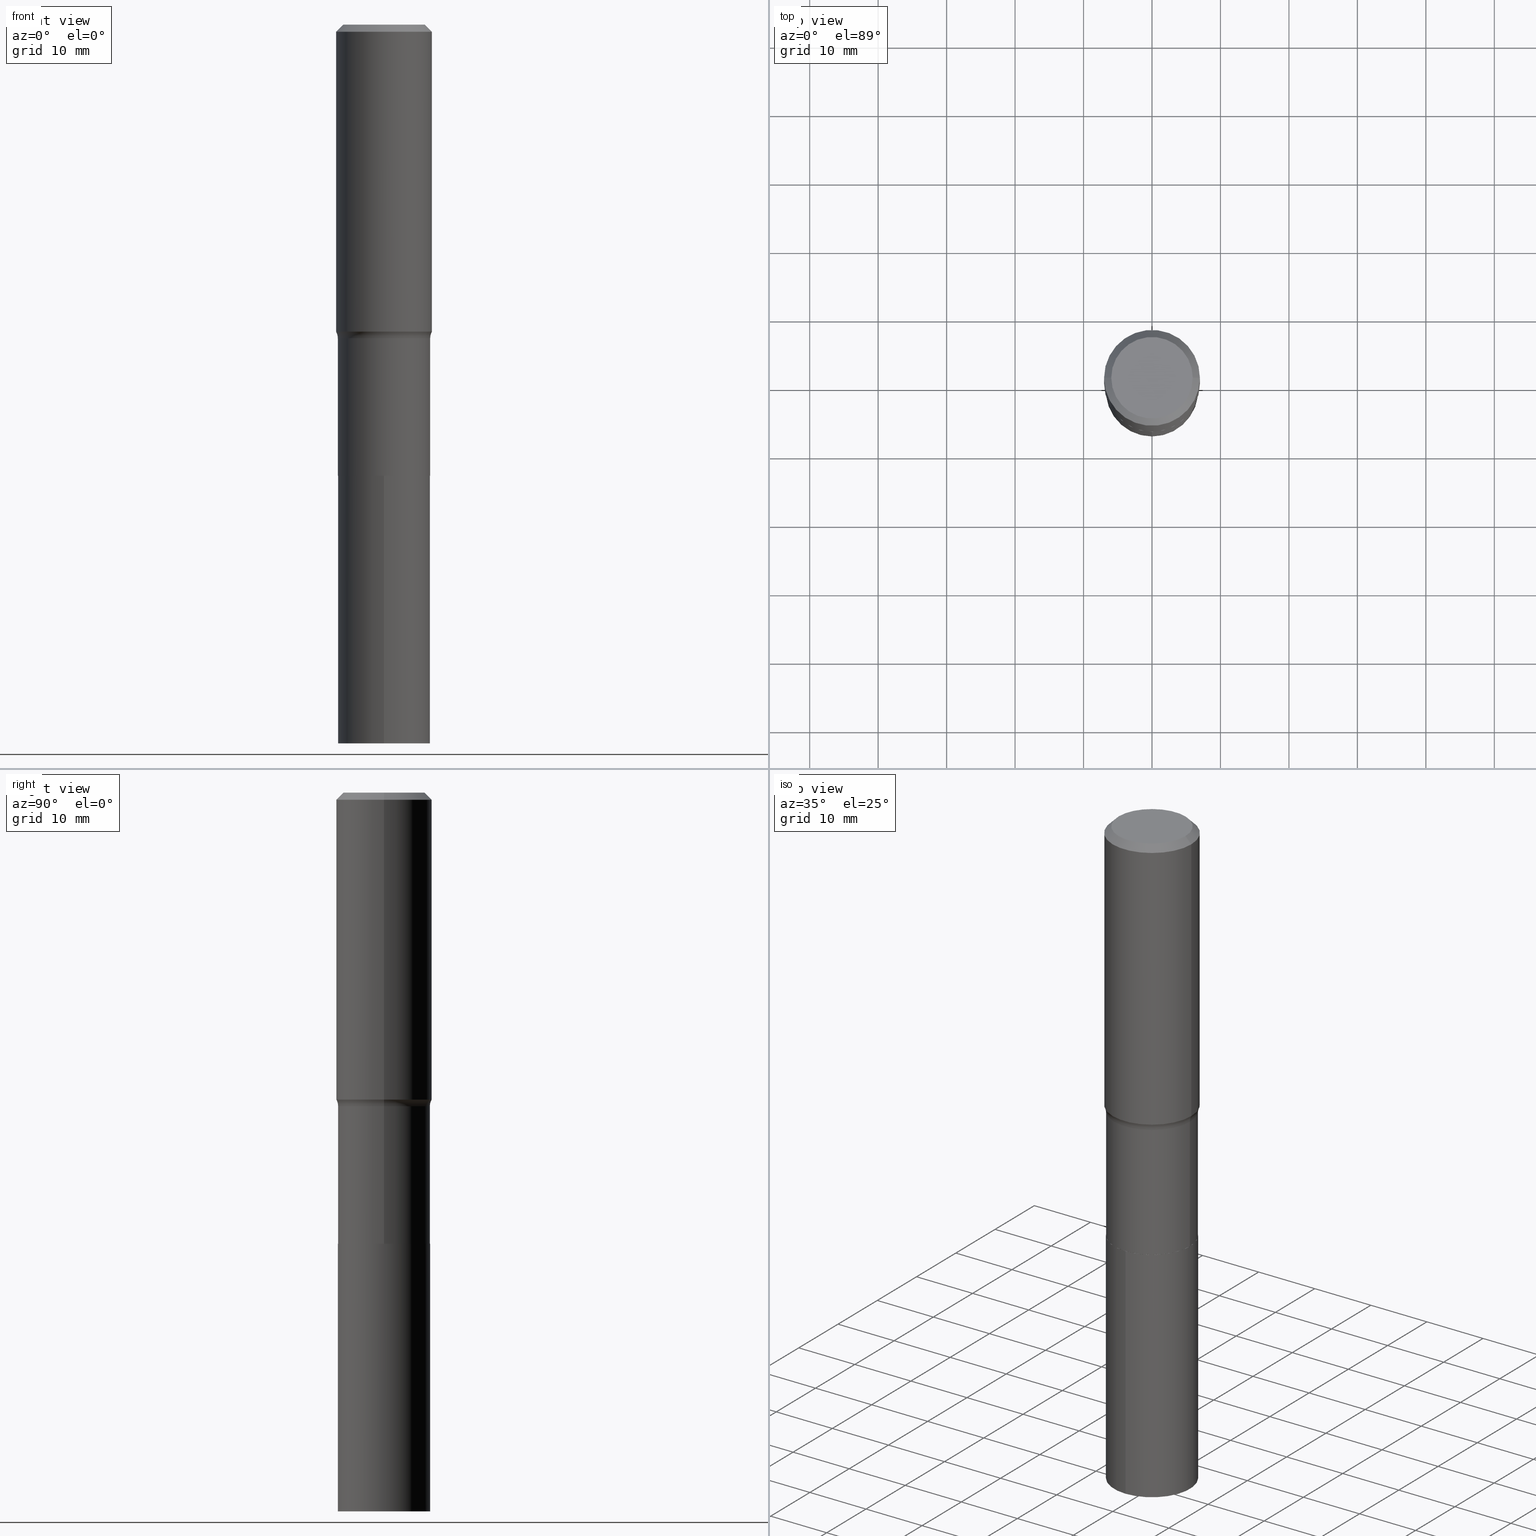
[diagram: canonical four-view strip — front | top / right | iso, engineering-drawing reading convention]
A machine part, canonical four-view strip (front | top / right | iso — engineering-drawing reading convention). The complete STEP part file that produces these views, byte-faithful:
ISO-10303-21;
HEADER;
FILE_DESCRIPTION (( 'STEP AP203' ),
    '1' );
FILE_NAME ('58847.STEP',
    '2024-04-19T14:45:17',
    ( '' ),
    ( '' ),
    'SwSTEP 2.0',
    'SolidWorks 2023',
    '' );
FILE_SCHEMA (( 'CONFIG_CONTROL_DESIGN' ));
ENDSEC;

DATA;
#1 = ORIENTED_EDGE ( 'NONE', *, *, #407, .F. ) ;
#2 = PERSON ( 'UNSPECIFIED', 'UNSPECIFIED', 'UNSPECIFIED', ('UNSPECIFIED'), ('UNSPECIFIED'), ('UNSPECIFIED') ) ;
#3 = CARTESIAN_POINT ( 'NONE',  ( 1.010956804476941522E-30, -1.443378385477764823E-16, -0.04134000000000024461 ) ) ;
#4 = CARTESIAN_POINT ( 'NONE',  ( -0.3455999999999999073, -3.843694936753897174E-15, -1.804199999999999804 ) ) ;
#5 = AXIS2_PLACEMENT_3D ( 'NONE', #4, #189, #456 ) ;
#6 = ORIENTED_EDGE ( 'NONE', *, *, #51, .F. ) ;
#7 = CARTESIAN_POINT ( 'NONE',  ( 0.2651000000000000023, -1.091122833201870838E-14, -2.594900000000000428 ) ) ;
#8 = ORIENTED_EDGE ( 'NONE', *, *, #443, .F. ) ;
#9 = DIRECTION ( 'NONE',  ( -1.000000000000000000, 6.982962677686265922E-15, -4.876176775795935793E-29 ) ) ;
#10 = ORIENTED_EDGE ( 'NONE', *, *, #454, .T. ) ;
#11 = ORIENTED_EDGE ( 'NONE', *, *, #156, .F. ) ;
#12 = EDGE_CURVE ( 'NONE', #53, #420, #359, .T. ) ;
#13 = DIRECTION ( 'NONE',  ( -0.7071067811864509833, 7.493145998870005484E-15, 0.7071067811866440511 ) ) ;
#14 = EDGE_LOOP ( 'NONE', ( #70, #47, #389, #298 ) ) ;
#15 = AXIS2_PLACEMENT_3D ( 'NONE', #186, #373, #223 ) ;
#16 = FACE_OUTER_BOUND ( 'NONE', #411, .T. ) ;
#17 = LOCAL_TIME ( 10, 45, 17.00000000000000000, #142 ) ;
#18 = DIRECTION ( 'NONE',  ( -2.445468806185136597E-29, 3.491481338843145583E-15, 1.000000000000000000 ) ) ;
#19 = EDGE_CURVE ( 'NONE', #53, #399, #463, .T. ) ;
#20 = CARTESIAN_POINT ( 'NONE',  ( 0.2756000000000001782, -8.088610654721802073E-15, -1.765470166537925101 ) ) ;
#21 = APPROVAL ( #219, 'UNSPECIFIED' ) ;
#22 = DIRECTION ( 'NONE',  ( -2.445468806185136597E-29, 3.491481338843145583E-15, 1.000000000000000000 ) ) ;
#23 = ORGANIZATION ( 'UNSPECIFIED', 'UNSPECIFIED', '' ) ;
#24 = PERSON_AND_ORGANIZATION ( #2, #23 ) ;
#25 = EDGE_CURVE ( 'NONE', #331, #294, #460, .T. ) ;
#26 = APPROVAL_DATE_TIME ( #184, #67 ) ;
#27 = CARTESIAN_POINT ( 'NONE',  ( 0.000000000000000000, 0.000000000000000000, 0.000000000000000000 ) ) ;
#28 = AXIS2_PLACEMENT_3D ( 'NONE', #263, #376, #402 ) ;
#29 = VECTOR ( 'NONE', #385, 39.37007874015748143 ) ;
#30 = DIRECTION ( 'NONE',  ( -2.445468806185136597E-29, 3.491481338843145583E-15, 1.000000000000000000 ) ) ;
#31 = ORIENTED_EDGE ( 'NONE', *, *, #425, .F. ) ;
#32 = PERSON_AND_ORGANIZATION_ROLE ( 'creator' ) ;
#33 = PLANE ( 'NONE',  #380 ) ;
#34 = CARTESIAN_POINT ( 'NONE',  ( 0.2756000000000000116, -2.035091086733610886E-15, -0.04134000000000024461 ) ) ;
#35 = ORIENTED_EDGE ( 'NONE', *, *, #379, .T. ) ;
#36 = CARTESIAN_POINT ( 'NONE',  ( 4.317402220518974111E-29, -6.164106140751466330E-15, -1.765470166537925101 ) ) ;
#37 = PERSON_AND_ORGANIZATION_ROLE ( 'classification_officer' ) ;
#38 = EDGE_LOOP ( 'NONE', ( #6, #232, #91, #225 ) ) ;
#39 = AXIS2_PLACEMENT_3D ( 'NONE', #3, #88, #162 ) ;
#40 = CIRCLE ( 'NONE', #230, 0.2756000000000001782 ) ;
#41 = APPROVAL_PERSON_ORGANIZATION ( #395, #21, #188 ) ;
#42 = DIRECTION ( 'NONE',  ( -2.445468806185136597E-29, 3.491481338843145583E-15, 1.000000000000000000 ) ) ;
#43 = APPROVAL_DATE_TIME ( #300, #172 ) ;
#44 = DIMENSIONAL_EXPONENTS ( 1.000000000000000000, 0.000000000000000000, 0.000000000000000000, 0.000000000000000000, 0.000000000000000000, 0.000000000000000000, 0.000000000000000000 ) ;
#45 = ADVANCED_FACE ( 'NONE', ( #117 ), #111, .T. ) ;
#46 = LINE ( 'NONE', #7, #364 ) ;
#47 = ORIENTED_EDGE ( 'NONE', *, *, #221, .T. ) ;
#48 = VECTOR ( 'NONE', #84, 39.37007874015748143 ) ;
#49 = CONICAL_SURFACE ( 'NONE', #296, 0.2651000000000000023, 0.7853981633973118326 ) ;
#50 = DIRECTION ( 'NONE',  ( -2.445468806185136597E-29, 3.491481338843145583E-15, 1.000000000000000000 ) ) ;
#51 = EDGE_CURVE ( 'NONE', #309, #377, #149, .T. ) ;
#52 = ORIENTED_EDGE ( 'NONE', *, *, #160, .T. ) ;
#53 = VERTEX_POINT ( 'NONE', #466 ) ;
#54 = CARTESIAN_POINT ( 'NONE',  ( 0.000000000000000000, 0.000000000000000000, 0.000000000000000000 ) ) ;
#55 = LINE ( 'NONE', #244, #303 ) ;
#56 = AXIS2_PLACEMENT_3D ( 'NONE', #97, #110, #332 ) ;
#57 = ORIENTED_EDGE ( 'NONE', *, *, #19, .T. ) ;
#58 = CARTESIAN_POINT ( 'NONE',  ( 0.2655999999999998917, -8.154005518734274413E-15, -1.804199999999999804 ) ) ;
#59 = CIRCLE ( 'NONE', #321, 0.2656000000000000028 ) ;
#60 = EDGE_CURVE ( 'NONE', #420, #53, #256, .T. ) ;
#61 = DIRECTION ( 'NONE',  ( -1.000000000000000000, 6.982962677686267499E-15, 0.000000000000000000 ) ) ;
#62 = CYLINDRICAL_SURFACE ( 'NONE', #214, 0.2656000000000000028 ) ;
#63 = FACE_OUTER_BOUND ( 'NONE', #351, .T. ) ;
#64 = APPROVAL_ROLE ( '' ) ;
#65 = AXIS2_PLACEMENT_3D ( 'NONE', #446, #282, #347 ) ;
#66 = APPROVAL_PERSON_ORGANIZATION ( #181, #67, #371 ) ;
#67 = APPROVAL ( #361, 'UNSPECIFIED' ) ;
#68 = LENGTH_MEASURE_WITH_UNIT ( LENGTH_MEASURE( 0.02539999999999999897 ), #215 );
#69 = DIRECTION ( 'NONE',  ( 1.000000000000000000, -6.982962677686267499E-15, 4.876157962347795834E-29 ) ) ;
#70 = ORIENTED_EDGE ( 'NONE', *, *, #204, .T. ) ;
#71 = PERSON_AND_ORGANIZATION ( #2, #23 ) ;
#72 = DIRECTION ( 'NONE',  ( 0.7071067811864509833, -2.468850131081245741E-15, 0.7071067811866440511 ) ) ;
#73 = AXIS2_PLACEMENT_3D ( 'NONE', #242, #387, #323 ) ;
#74 = DIRECTION ( 'NONE',  ( 1.000000000000000000, -6.982962677686267499E-15, 4.876176775795935793E-29 ) ) ;
#75 = ORIENTED_EDGE ( 'NONE', *, *, #204, .F. ) ;
#76 = PERSON_AND_ORGANIZATION_ROLE ( 'creator' ) ;
#77 = DIRECTION ( 'NONE',  ( -0.7071067811865453523, 2.468850131082234184E-15, -0.7071067811865496822 ) ) ;
#78 = CC_DESIGN_PERSON_AND_ORGANIZATION_ASSIGNMENT ( #154, #107, ( #90 ) ) ;
#79 = DIRECTION ( 'NONE',  ( -6.982962677686265133E-15, -1.000000000000000000, 4.114228906120878260E-15 ) ) ;
#80 = CARTESIAN_POINT ( 'NONE',  ( 0.000000000000000000, 0.000000000000000000, 0.000000000000000000 ) ) ;
#81 = EDGE_LOOP ( 'NONE', ( #157, #11 ) ) ;
#82 = FACE_OUTER_BOUND ( 'NONE', #14, .T. ) ;
#83 = CALENDAR_DATE ( 2024, 19, 4 ) ;
#84 = DIRECTION ( 'NONE',  ( -2.445468806185136877E-29, 3.491481338843145188E-15, 1.000000000000000000 ) ) ;
#85 = DIRECTION ( 'NONE',  ( -6.982962677686265133E-15, -1.000000000000000000, 4.114228906120878260E-15 ) ) ;
#86 = EDGE_CURVE ( 'NONE', #104, #309, #327, .T. ) ;
#87 = APPROVAL_PERSON_ORGANIZATION ( #392, #172, #64 ) ;
#88 = DIRECTION ( 'NONE',  ( -2.445468806185136597E-29, 3.491481338843145583E-15, 1.000000000000000000 ) ) ;
#89 = ORIENTED_EDGE ( 'NONE', *, *, #19, .F. ) ;
#90 = PRODUCT ( '58847', '58847', '', ( #283 ) ) ;
#91 = ORIENTED_EDGE ( 'NONE', *, *, #139, .T. ) ;
#92 = AXIS2_PLACEMENT_3D ( 'NONE', #390, #275, #179 ) ;
#93 = DIRECTION ( 'NONE',  ( -2.445468806185136877E-29, 3.491481338843145188E-15, 1.000000000000000000 ) ) ;
#94 = ORIENTED_EDGE ( 'NONE', *, *, #249, .T. ) ;
#95 = DIRECTION ( 'NONE',  ( -6.982962677686265133E-15, -1.000000000000000000, 4.114228906120878260E-15 ) ) ;
#96 = DIRECTION ( 'NONE',  ( 2.446021775640540996E-29, -3.490689455109939233E-15, -1.000000000000000000 ) ) ;
#97 = CARTESIAN_POINT ( 'NONE',  ( 0.000000000000000000, 0.000000000000000000, 0.000000000000000000 ) ) ;
#98 = FACE_OUTER_BOUND ( 'NONE', #344, .T. ) ;
#99 = CLOSED_SHELL ( 'NONE', ( #243, #413, #403, #374, #123, #112, #304, #45, #285, #228, #206, #268 ) ) ;
#100 = VERTEX_POINT ( 'NONE', #177 ) ;
#101 = CARTESIAN_POINT ( 'NONE',  ( 0.2756000000000000116, -2.068842352518111732E-15, -0.04134000000000024461 ) ) ;
#102 = VECTOR ( 'NONE', #13, 39.37007874015748143 ) ;
#103 = CARTESIAN_POINT ( 'NONE',  ( 6.344524270766718466E-29, -9.058299185494657438E-15, -2.594400000000000261 ) ) ;
#104 = VERTEX_POINT ( 'NONE', #20 ) ;
#105 = DATE_AND_TIME ( #421, #17 ) ;
#106 = ADVANCED_FACE ( 'NONE', ( #355 ), #62, .T. ) ;
#107 = PERSON_AND_ORGANIZATION_ROLE ( 'design_owner' ) ;
#108 = LOCAL_TIME ( 10, 45, 17.00000000000000000, #333 ) ;
#109 = DIRECTION ( 'NONE',  ( 1.000000000000000000, -6.982962677686267499E-15, 4.876157962347795834E-29 ) ) ;
#110 = DIRECTION ( 'NONE',  ( -2.445468806185136597E-29, 3.491481338843145583E-15, 1.000000000000000000 ) ) ;
#111 = CYLINDRICAL_SURFACE ( 'NONE', #278, 0.2756000000000001227 ) ;
#112 = ADVANCED_FACE ( 'NONE', ( #322 ), #141, .T. ) ;
#113 = ORIENTED_EDGE ( 'NONE', *, *, #236, .T. ) ;
#114 = DATE_AND_TIME ( #465, #108 ) ;
#115 = PLANE ( 'NONE',  #15 ) ;
#116 = AXIS2_PLACEMENT_3D ( 'NONE', #250, #224, #217 ) ;
#117 = FACE_OUTER_BOUND ( 'NONE', #38, .T. ) ;
#118 = ORIENTED_EDGE ( 'NONE', *, *, #86, .T. ) ;
#119 = DIRECTION ( 'NONE',  ( -2.445468806185136877E-29, 3.491481338843145188E-15, 1.000000000000000000 ) ) ;
#120 = LINE ( 'NONE', #299, #452 ) ;
#121 = FACE_OUTER_BOUND ( 'NONE', #81, .T. ) ;
#122 = FACE_OUTER_BOUND ( 'NONE', #346, .T. ) ;
#123 = ADVANCED_FACE ( 'NONE', ( #274 ), #415, .T. ) ;
#124 = CIRCLE ( 'NONE', #432, 0.2651000000000000023 ) ;
#125 = ORIENTED_EDGE ( 'NONE', *, *, #25, .F. ) ;
#126 = LINE ( 'NONE', #345, #246 ) ;
#127 = ORIENTED_EDGE ( 'NONE', *, *, #249, .F. ) ;
#128 = CARTESIAN_POINT ( 'NONE',  ( 6.345747005169811267E-29, -9.060044926164079731E-15, -2.594900000000000428 ) ) ;
#129 = EDGE_LOOP ( 'NONE', ( #353, #57, #203, #406 ) ) ;
#130 = TOROIDAL_SURFACE ( 'NONE', #185, 0.3455999999999999073, 0.08000000000000001554 ) ;
#131 = DIRECTION ( 'NONE',  ( 1.000000000000000000, -6.982962677686271444E-15, 0.000000000000000000 ) ) ;
#132 = LINE ( 'NONE', #240, #29 ) ;
#133 = PLANE ( 'NONE',  #92 ) ;
#134 = APPLICATION_CONTEXT ( 'configuration controlled 3d designs of mechanical parts and assemblies' ) ;
#135 = EDGE_CURVE ( 'NONE', #309, #104, #40, .T. ) ;
#136 = CIRCLE ( 'NONE', #397, 0.2651000000000000023 ) ;
#137 = DIRECTION ( 'NONE',  ( -2.445468806185136597E-29, 3.491481338843145583E-15, 1.000000000000000000 ) ) ;
#138 = CIRCLE ( 'NONE', #170, 0.2655999999999998917 ) ;
#139 = EDGE_CURVE ( 'NONE', #104, #399, #126, .T. ) ;
#140 = ORIENTED_EDGE ( 'NONE', *, *, #12, .T. ) ;
#141 = CYLINDRICAL_SURFACE ( 'NONE', #65, 0.2655999999999999472 ) ;
#142 = COORDINATED_UNIVERSAL_TIME_OFFSET ( 5, 0, .BEHIND. ) ;
#143 = CALENDAR_DATE ( 2024, 19, 4 ) ;
#144 = DIRECTION ( 'NONE',  ( 1.000000000000000000, -6.982962677686265922E-15, 0.000000000000000000 ) ) ;
#145 = MANIFOLD_SOLID_BREP ( 'Body-Move/Copy2[2]', #99 ) ;
#146 = PERSON_AND_ORGANIZATION_ROLE ( 'design_supplier' ) ;
#147 = AXIS2_PLACEMENT_3D ( 'NONE', #447, #352, #61 ) ;
#148 = CC_DESIGN_APPROVAL ( #172, ( #231 ) ) ;
#149 = LINE ( 'NONE', #369, #378 ) ;
#150 = DIRECTION ( 'NONE',  ( 1.000000000000000000, 0.000000000000000000, 0.000000000000000000 ) ) ;
#151 = ADVANCED_FACE ( 'NONE', ( #82 ), #295, .T. ) ;
#152 = DIRECTION ( 'NONE',  ( 0.7071067811865453523, -7.319954787623248157E-15, -0.7071067811865496822 ) ) ;
#153 = ORIENTED_EDGE ( 'NONE', *, *, #324, .F. ) ;
#154 = PERSON_AND_ORGANIZATION ( #2, #23 ) ;
#155 = CARTESIAN_POINT ( 'NONE',  ( 0.3455999999999999073, -8.712642532949174488E-15, -1.804199999999999804 ) ) ;
#156 = EDGE_CURVE ( 'NONE', #401, #194, #136, .T. ) ;
#157 = ORIENTED_EDGE ( 'NONE', *, *, #454, .F. ) ;
#158 = AXIS2_PLACEMENT_3D ( 'NONE', #426, #292, #109 ) ;
#159 = ORIENTED_EDGE ( 'NONE', *, *, #156, .T. ) ;
#160 = EDGE_CURVE ( 'NONE', #377, #399, #200, .T. ) ;
#161 = DIRECTION ( 'NONE',  ( 1.000000000000000000, -6.982962677686265922E-15, 0.000000000000000000 ) ) ;
#162 = DIRECTION ( 'NONE',  ( 1.000000000000000000, -6.982962677686267499E-15, 0.000000000000000000 ) ) ;
#163 = FACE_OUTER_BOUND ( 'NONE', #436, .T. ) ;
#164 = CONICAL_SURFACE ( 'NONE', #180, 0.2651000000000000023, 0.7853981633973118326 ) ;
#165 = SHAPE_DEFINITION_REPRESENTATION ( #306, #423 ) ;
#166 = ORIENTED_EDGE ( 'NONE', *, *, #167, .T. ) ;
#167 = EDGE_CURVE ( 'NONE', #420, #377, #120, .T. ) ;
#168 = EDGE_LOOP ( 'NONE', ( #201, #140 ) ) ;
#169 = CARTESIAN_POINT ( 'NONE',  ( 1.887201506178908155E-15, 0.2655999999999855699, -4.133900000000002350 ) ) ;
#170 = AXIS2_PLACEMENT_3D ( 'NONE', #211, #18, #175 ) ;
#171 = CC_DESIGN_SECURITY_CLASSIFICATION ( #231, ( #445 ) ) ;
#172 = APPROVAL ( #284, 'UNSPECIFIED' ) ;
#173 = FACE_OUTER_BOUND ( 'NONE', #129, .T. ) ;
#174 = CARTESIAN_POINT ( 'NONE',  ( 1.010956804476941522E-30, -1.443378385477764823E-16, -0.04134000000000024461 ) ) ;
#175 = DIRECTION ( 'NONE',  ( 1.000000000000000000, -6.982962677686266711E-15, 0.000000000000000000 ) ) ;
#176 = CC_DESIGN_PERSON_AND_ORGANIZATION_ASSIGNMENT ( #24, #37, ( #231 ) ) ;
#177 = CARTESIAN_POINT ( 'NONE',  ( -0.2655999999999998917, -5.791613402338903590E-15, -1.804199999999999804 ) ) ;
#178 = CIRCLE ( 'NONE', #311, 0.2656000000000000028 ) ;
#179 = DIRECTION ( 'NONE',  ( -6.982962677686265922E-15, -1.000000000000000000, 3.490689455109939233E-15 ) ) ;
#180 = AXIS2_PLACEMENT_3D ( 'NONE', #252, #366, #307 ) ;
#181 = PERSON_AND_ORGANIZATION ( #2, #23 ) ;
#182 = DIRECTION ( 'NONE',  ( -2.446021775640540996E-29, 3.490689455109939628E-15, 1.000000000000000000 ) ) ;
#183 = FACE_OUTER_BOUND ( 'NONE', #239, .T. ) ;
#184 = DATE_AND_TIME ( #143, #337 ) ;
#185 = AXIS2_PLACEMENT_3D ( 'NONE', #412, #356, #409 ) ;
#186 = CARTESIAN_POINT ( 'NONE',  ( 6.345747005169811267E-29, -9.060044926164079731E-15, -2.594900000000000428 ) ) ;
#187 = VERTEX_POINT ( 'NONE', #372 ) ;
#188 = APPROVAL_ROLE ( '' ) ;
#189 = DIRECTION ( 'NONE',  ( 7.105427357601001859E-15, 1.000000000000000000, -3.491481338843145583E-15 ) ) ;
#190 = DIRECTION ( 'NONE',  ( -2.445468806185136877E-29, 3.491481338843145188E-15, 1.000000000000000000 ) ) ;
#191 = ORIENTED_EDGE ( 'NONE', *, *, #60, .F. ) ;
#192 = DATE_TIME_ROLE ( 'creation_date' ) ;
#193 = EDGE_CURVE ( 'NONE', #276, #100, #262, .T. ) ;
#194 = VERTEX_POINT ( 'NONE', #301 ) ;
#195 = CARTESIAN_POINT ( 'NONE',  ( 6.345747005169811267E-29, -9.060044926164079731E-15, -2.594900000000000428 ) ) ;
#196 = LOCAL_TIME ( 10, 45, 17.00000000000000000, #330 ) ;
#197 = UNCERTAINTY_MEASURE_WITH_UNIT (LENGTH_MEASURE( 1.000000000000000082E-05 ), #290, 'distance_accuracy_value', 'NONE');
#198 = ORIENTED_EDGE ( 'NONE', *, *, #358, .F. ) ;
#199 = CC_DESIGN_PERSON_AND_ORGANIZATION_ASSIGNMENT ( #71, #32, ( #391 ) ) ;
#200 = CIRCLE ( 'NONE', #39, 0.2756000000000000116 ) ;
#201 = ORIENTED_EDGE ( 'NONE', *, *, #60, .T. ) ;
#202 = AXIS2_PLACEMENT_3D ( 'NONE', #174, #449, #354 ) ;
#203 = ORIENTED_EDGE ( 'NONE', *, *, #443, .T. ) ;
#204 = EDGE_CURVE ( 'NONE', #294, #331, #178, .T. ) ;
#205 = DIRECTION ( 'NONE',  ( 1.000000000000000000, -6.982962677686267499E-15, 4.876176775795935793E-29 ) ) ;
#206 = ADVANCED_FACE ( 'NONE', ( #121 ), #115, .F. ) ;
#207 = CARTESIAN_POINT ( 'NONE',  ( -0.2756000000000000116, -1.195966209894784176E-15, -0.04134000000000024461 ) ) ;
#208 = ORIENTED_EDGE ( 'NONE', *, *, #343, .T. ) ;
#209 = CIRCLE ( 'NONE', #453, 0.2656000000000000028 ) ;
#210 = ORIENTED_EDGE ( 'NONE', *, *, #193, .T. ) ;
#211 = CARTESIAN_POINT ( 'NONE',  ( 4.412114820119222828E-29, -6.299330631540802758E-15, -1.804199999999999804 ) ) ;
#212 = DIRECTION ( 'NONE',  ( -2.446021775640540996E-29, 3.490689455109939628E-15, 1.000000000000000000 ) ) ;
#213 = DIRECTION ( 'NONE',  ( 1.000000000000000000, -6.982962677686265922E-15, 0.000000000000000000 ) ) ;
#214 = AXIS2_PLACEMENT_3D ( 'NONE', #450, #212, #95 ) ;
#215 =( LENGTH_UNIT ( ) NAMED_UNIT ( * ) SI_UNIT ( $, .METRE. ) );
#216 =( NAMED_UNIT ( * ) SI_UNIT ( $, .STERADIAN. ) SOLID_ANGLE_UNIT ( ) );
#217 = DIRECTION ( 'NONE',  ( -6.982962677686265133E-15, -1.000000000000000000, 4.114228906120878260E-15 ) ) ;
#218 = ORIENTED_EDGE ( 'NONE', *, *, #343, .F. ) ;
#219 = APPROVAL_STATUS ( 'not_yet_approved' ) ;
#220 = CLOSED_SHELL ( 'NONE', ( #151, #334, #106, #320 ) ) ;
#221 = EDGE_CURVE ( 'NONE', #331, #187, #427, .T. ) ;
#222 = AXIS2_PLACEMENT_3D ( 'NONE', #266, #50, #340 ) ;
#223 = DIRECTION ( 'NONE',  ( 1.000000000000000000, -6.982962677686265922E-15, 4.876176775795935793E-29 ) ) ;
#224 = DIRECTION ( 'NONE',  ( -2.446021775640540996E-29, 3.490689455109939628E-15, 1.000000000000000000 ) ) ;
#225 = ORIENTED_EDGE ( 'NONE', *, *, #160, .F. ) ;
#226 = PERSON_AND_ORGANIZATION ( #2, #23 ) ;
#227 = DIRECTION ( 'NONE',  ( 2.438088387897960049E-29, -3.491481338843145188E-15, -1.000000000000000000 ) ) ;
#228 = ADVANCED_FACE ( 'NONE', ( #368 ), #33, .F. ) ;
#229 = EDGE_LOOP ( 'NONE', ( #335, #441, #253, #261 ) ) ;
#230 = AXIS2_PLACEMENT_3D ( 'NONE', #36, #42, #437 ) ;
#231 = SECURITY_CLASSIFICATION ( '', '', #455 ) ;
#232 = ORIENTED_EDGE ( 'NONE', *, *, #135, .T. ) ;
#233 = ORIENTED_EDGE ( 'NONE', *, *, #139, .F. ) ;
#234 =( GEOMETRIC_REPRESENTATION_CONTEXT ( 3 ) GLOBAL_UNCERTAINTY_ASSIGNED_CONTEXT ( ( #197 ) ) GLOBAL_UNIT_ASSIGNED_CONTEXT ( ( #290, #429, #216 ) ) REPRESENTATION_CONTEXT ( 'NONE', 'WORKASPACE' ) );
#235 = DIRECTION ( 'NONE',  ( -2.445468806185136597E-29, 3.491481338843145583E-15, 1.000000000000000000 ) ) ;
#236 = EDGE_CURVE ( 'NONE', #428, #187, #59, .T. ) ;
#237 = DESIGN_CONTEXT ( 'detailed design', #134, 'design' ) ;
#238 = DIRECTION ( 'NONE',  ( 6.982962677686265922E-15, 1.000000000000000000, -3.490689455109939233E-15 ) ) ;
#239 = EDGE_LOOP ( 'NONE', ( #1, #159, #394, #218 ) ) ;
#240 = CARTESIAN_POINT ( 'NONE',  ( -1.854674887193408547E-15, -0.2656000000000090511, -2.594899999999999096 ) ) ;
#241 = AXIS2_PLACEMENT_3D ( 'NONE', #302, #440, #357 ) ;
#242 = CARTESIAN_POINT ( 'NONE',  ( 4.412114820119222828E-29, -6.299330631540802758E-15, -1.804199999999999804 ) ) ;
#243 = ADVANCED_FACE ( 'NONE', ( #122 ), #164, .T. ) ;
#244 = CARTESIAN_POINT ( 'NONE',  ( 0.2655999999999999472, -1.854674887193472050E-15, 1.295112551651400461E-29 ) ) ;
#245 = DATE_TIME_ROLE ( 'classification_date' ) ;
#246 = VECTOR ( 'NONE', #119, 39.37007874015748143 ) ;
#247 = AXIS2_PLACEMENT_3D ( 'NONE', #155, #430, #258 ) ;
#248 = CARTESIAN_POINT ( 'NONE',  ( 6.345747005169811267E-29, -9.060044926164079731E-15, -2.594900000000000428 ) ) ;
#249 = EDGE_CURVE ( 'NONE', #365, #276, #350, .T. ) ;
#250 = CARTESIAN_POINT ( 'NONE',  ( 1.011017451788060457E-28, -1.443221599757827905E-14, -4.133900000000000574 ) ) ;
#251 = CALENDAR_DATE ( 2024, 19, 4 ) ;
#252 = CARTESIAN_POINT ( 'NONE',  ( 6.345747005169811267E-29, -9.060044926164079731E-15, -2.594900000000000428 ) ) ;
#253 = ORIENTED_EDGE ( 'NONE', *, *, #279, .T. ) ;
#254 = CC_DESIGN_PERSON_AND_ORGANIZATION_ASSIGNMENT ( #226, #146, ( #445 ) ) ;
#255 = COORDINATED_UNIVERSAL_TIME_OFFSET ( 5, 0, .BEHIND. ) ;
#256 = CIRCLE ( 'NONE', #158, 0.2342600000000000238 ) ;
#257 = CONICAL_SURFACE ( 'NONE', #147, 0.2756000000000000116, 0.7853981633974452814 ) ;
#258 = DIRECTION ( 'NONE',  ( 1.000000000000000000, -6.982962677686257244E-15, 0.000000000000000000 ) ) ;
#259 = CARTESIAN_POINT ( 'NONE',  ( -1.854674887193371076E-15, -0.2656000000000144357, -4.133899999999999686 ) ) ;
#260 = DIRECTION ( 'NONE',  ( -2.445468806185136597E-29, 3.491481338843145583E-15, 1.000000000000000000 ) ) ;
#261 = ORIENTED_EDGE ( 'NONE', *, *, #324, .T. ) ;
#262 = LINE ( 'NONE', #404, #48 ) ;
#263 = CARTESIAN_POINT ( 'NONE',  ( 6.345747005169811267E-29, -9.060044926164079731E-15, -2.594900000000000428 ) ) ;
#264 = ORIENTED_EDGE ( 'NONE', *, *, #279, .F. ) ;
#265 = EDGE_CURVE ( 'NONE', #194, #365, #46, .T. ) ;
#266 = CARTESIAN_POINT ( 'NONE',  ( 6.344524270766718466E-29, -9.058299185494657438E-15, -2.594400000000000261 ) ) ;
#267 = ORIENTED_EDGE ( 'NONE', *, *, #265, .F. ) ;
#268 = ADVANCED_FACE ( 'NONE', ( #183 ), #49, .T. ) ;
#269 = CARTESIAN_POINT ( 'NONE',  ( 0.2656000000000000028, -1.091297407268813067E-14, -2.594400000000000261 ) ) ;
#270 = AXIS2_PLACEMENT_3D ( 'NONE', #317, #30, #69 ) ;
#271 = AXIS2_PLACEMENT_3D ( 'NONE', #27, #462, #150 ) ;
#272 = LINE ( 'NONE', #281, #102 ) ;
#273 = ORIENTED_EDGE ( 'NONE', *, *, #293, .T. ) ;
#274 = FACE_OUTER_BOUND ( 'NONE', #382, .T. ) ;
#275 = DIRECTION ( 'NONE',  ( -2.446021775640540996E-29, 3.490689455109939233E-15, 1.000000000000000000 ) ) ;
#276 = VERTEX_POINT ( 'NONE', #424 ) ;
#277 = CARTESIAN_POINT ( 'NONE',  ( 4.412114820119222828E-29, -6.299330631540802758E-15, -1.804199999999999804 ) ) ;
#278 = AXIS2_PLACEMENT_3D ( 'NONE', #80, #396, #74 ) ;
#279 = EDGE_CURVE ( 'NONE', #104, #442, #461, .T. ) ;
#280 = CIRCLE ( 'NONE', #73, 0.2655999999999998917 ) ;
#281 = CARTESIAN_POINT ( 'NONE',  ( -0.2651000000000000023, -7.176396133664053333E-15, -2.594900000000000428 ) ) ;
#282 = DIRECTION ( 'NONE',  ( -2.445468806185136597E-29, 3.491481338843145583E-15, 1.000000000000000000 ) ) ;
#283 = MECHANICAL_CONTEXT ( 'NONE', #297, 'mechanical' ) ;
#284 = APPROVAL_STATUS ( 'not_yet_approved' ) ;
#285 = ADVANCED_FACE ( 'NONE', ( #163 ), #386, .T. ) ;
#286 = VECTOR ( 'NONE', #338, 39.37007874015748143 ) ;
#287 = CC_DESIGN_APPROVAL ( #21, ( #445 ) ) ;
#288 = EDGE_LOOP ( 'NONE', ( #75, #125 ) ) ;
#289 = FACE_OUTER_BOUND ( 'NONE', #229, .T. ) ;
#290 =( CONVERSION_BASED_UNIT ( 'INCH', #68 ) LENGTH_UNIT ( ) NAMED_UNIT ( #44 ) );
#291 = CARTESIAN_POINT ( 'NONE',  ( -5.014852121625167883E-47, 7.159879756154482429E-33, 2.050671065172242981E-18 ) ) ;
#292 = DIRECTION ( 'NONE',  ( -2.445468806185136597E-29, 3.491481338843145583E-15, 1.000000000000000000 ) ) ;
#293 = EDGE_CURVE ( 'NONE', #309, #100, #313, .T. ) ;
#294 = VERTEX_POINT ( 'NONE', #259 ) ;
#295 = CYLINDRICAL_SURFACE ( 'NONE', #28, 0.2656000000000000028 ) ;
#296 = AXIS2_PLACEMENT_3D ( 'NONE', #248, #367, #144 ) ;
#297 = APPLICATION_CONTEXT ( 'configuration controlled 3d designs of mechanical parts and assemblies' ) ;
#298 = ORIENTED_EDGE ( 'NONE', *, *, #434, .F. ) ;
#299 = CARTESIAN_POINT ( 'NONE',  ( -0.2756000000000000116, 1.780166675422558965E-15, -0.04134000000000024461 ) ) ;
#300 = DATE_AND_TIME ( #83, #439 ) ;
#301 = CARTESIAN_POINT ( 'NONE',  ( 0.2651000000000000023, -1.091122833201870838E-14, -2.594900000000000428 ) ) ;
#302 = CARTESIAN_POINT ( 'NONE',  ( 1.010956804476941522E-30, -1.443378385477764823E-16, -0.04134000000000024461 ) ) ;
#303 = VECTOR ( 'NONE', #93, 39.37007874015748143 ) ;
#304 = ADVANCED_FACE ( 'NONE', ( #289 ), #130, .F. ) ;
#305 = COORDINATED_UNIVERSAL_TIME_OFFSET ( 5, 0, .BEHIND. ) ;
#306 = PRODUCT_DEFINITION_SHAPE ( 'NONE', 'NONE',  #391 ) ;
#307 = DIRECTION ( 'NONE',  ( 1.000000000000000000, -6.982962677686265922E-15, 0.000000000000000000 ) ) ;
#308 = ORIENTED_EDGE ( 'NONE', *, *, #358, .T. ) ;
#309 = VERTEX_POINT ( 'NONE', #384 ) ;
#310 = DIRECTION ( 'NONE',  ( -2.445468806185136597E-29, 3.491481338843145583E-15, 1.000000000000000000 ) ) ;
#311 = AXIS2_PLACEMENT_3D ( 'NONE', #438, #405, #85 ) ;
#312 = AXIS2_PLACEMENT_3D ( 'NONE', #54, #310, #205 ) ;
#313 = CIRCLE ( 'NONE', #5, 0.08000000000000002942 ) ;
#314 = CARTESIAN_POINT ( 'NONE',  ( -1.854674887193408547E-15, -0.2656000000000090511, -2.594899999999999096 ) ) ;
#315 = CARTESIAN_POINT ( 'NONE',  ( 6.345747005169811267E-29, -9.060044926164079731E-15, -2.594900000000000428 ) ) ;
#316 = CC_DESIGN_DATE_AND_TIME_ASSIGNMENT ( #326, #192, ( #391 ) ) ;
#317 = CARTESIAN_POINT ( 'NONE',  ( -1.002970424325033577E-46, 1.431975951230896486E-32, 4.101342130344485961E-18 ) ) ;
#318 = CYLINDRICAL_SURFACE ( 'NONE', #312, 0.2756000000000001227 ) ;
#319 = AXIS2_PLACEMENT_3D ( 'NONE', #431, #260, #363 ) ;
#320 = ADVANCED_FACE ( 'NONE', ( #98 ), #417, .F. ) ;
#321 = AXIS2_PLACEMENT_3D ( 'NONE', #388, #182, #79 ) ;
#322 = FACE_OUTER_BOUND ( 'NONE', #329, .T. ) ;
#323 = DIRECTION ( 'NONE',  ( 1.000000000000000000, -6.982962677686266711E-15, 0.000000000000000000 ) ) ;
#324 = EDGE_CURVE ( 'NONE', #442, #100, #280, .T. ) ;
#325 = APPLICATION_PROTOCOL_DEFINITION ( 'international standard', 'config_control_design', 1994, #134 ) ;
#326 = DATE_AND_TIME ( #251, #196 ) ;
#327 = CIRCLE ( 'NONE', #319, 0.2756000000000001782 ) ;
#328 = CIRCLE ( 'NONE', #360, 0.2656000000000000028 ) ;
#329 = EDGE_LOOP ( 'NONE', ( #408, #208, #308, #31 ) ) ;
#330 = COORDINATED_UNIVERSAL_TIME_OFFSET ( 5, 0, .BEHIND. ) ;
#331 = VERTEX_POINT ( 'NONE', #169 ) ;
#332 = DIRECTION ( 'NONE',  ( 1.000000000000000000, -6.982962677686266711E-15, 4.876176775795936353E-29 ) ) ;
#333 = COORDINATED_UNIVERSAL_TIME_OFFSET ( 5, 0, .BEHIND. ) ;
#334 = ADVANCED_FACE ( 'NONE', ( #416 ), #133, .F. ) ;
#335 = ORIENTED_EDGE ( 'NONE', *, *, #293, .F. ) ;
#336 = ORIENTED_EDGE ( 'NONE', *, *, #379, .F. ) ;
#337 = LOCAL_TIME ( 10, 45, 17.00000000000000000, #255 ) ;
#338 = DIRECTION ( 'NONE',  ( -2.446021775640541276E-29, 3.490689455109939233E-15, 1.000000000000000000 ) ) ;
#339 = CC_DESIGN_DATE_AND_TIME_ASSIGNMENT ( #105, #245, ( #231 ) ) ;
#340 = DIRECTION ( 'NONE',  ( 1.000000000000000000, -6.982962677686271444E-15, 0.000000000000000000 ) ) ;
#341 = ORIENTED_EDGE ( 'NONE', *, *, #221, .F. ) ;
#342 = AXIS2_PLACEMENT_3D ( 'NONE', #277, #235, #348 ) ;
#343 = EDGE_CURVE ( 'NONE', #276, #365, #209, .T. ) ;
#344 = EDGE_LOOP ( 'NONE', ( #113, #35 ) ) ;
#345 = CARTESIAN_POINT ( 'NONE',  ( 0.2756000000000001227, -1.924504513970336137E-15, 1.343874319409360548E-29 ) ) ;
#346 = EDGE_LOOP ( 'NONE', ( #10, #457, #127, #267 ) ) ;
#347 = DIRECTION ( 'NONE',  ( 1.000000000000000000, -6.982962677686266711E-15, 4.876176775795936353E-29 ) ) ;
#348 = DIRECTION ( 'NONE',  ( 1.000000000000000000, -6.982962677686267499E-15, 4.883557194083112901E-29 ) ) ;
#349 = DIRECTION ( 'NONE',  ( -2.446021775640540996E-29, 3.490689455109939628E-15, 1.000000000000000000 ) ) ;
#350 = CIRCLE ( 'NONE', #222, 0.2656000000000000028 ) ;
#351 = EDGE_LOOP ( 'NONE', ( #433, #273, #467, #264 ) ) ;
#352 = DIRECTION ( 'NONE',  ( 2.445468806185136597E-29, -3.491481338843145583E-15, -1.000000000000000000 ) ) ;
#353 = ORIENTED_EDGE ( 'NONE', *, *, #12, .F. ) ;
#354 = DIRECTION ( 'NONE',  ( 1.000000000000000000, -6.982962677686267499E-15, 0.000000000000000000 ) ) ;
#355 = FACE_OUTER_BOUND ( 'NONE', #370, .T. ) ;
#356 = DIRECTION ( 'NONE',  ( -2.445468806185136597E-29, 3.491481338843145583E-15, 1.000000000000000000 ) ) ;
#357 = DIRECTION ( 'NONE',  ( -1.000000000000000000, 6.982962677686267499E-15, 0.000000000000000000 ) ) ;
#358 = EDGE_CURVE ( 'NONE', #365, #442, #55, .T. ) ;
#359 = CIRCLE ( 'NONE', #270, 0.2342600000000000238 ) ;
#360 = AXIS2_PLACEMENT_3D ( 'NONE', #315, #349, #383 ) ;
#361 = APPROVAL_STATUS ( 'not_yet_approved' ) ;
#362 = APPLICATION_PROTOCOL_DEFINITION ( 'international standard', 'config_control_design', 1994, #297 ) ;
#363 = DIRECTION ( 'NONE',  ( 1.000000000000000000, -6.982962677686265922E-15, 0.000000000000000000 ) ) ;
#364 = VECTOR ( 'NONE', #72, 39.37007874015748143 ) ;
#365 = VERTEX_POINT ( 'NONE', #269 ) ;
#366 = DIRECTION ( 'NONE',  ( -2.445468806185136597E-29, 3.491481338843145583E-15, 1.000000000000000000 ) ) ;
#367 = DIRECTION ( 'NONE',  ( -2.445468806185136597E-29, 3.491481338843145583E-15, 1.000000000000000000 ) ) ;
#368 = FACE_OUTER_BOUND ( 'NONE', #168, .T. ) ;
#369 = CARTESIAN_POINT ( 'NONE',  ( -0.2756000000000001227, 1.958255779754836984E-15, -1.355658510874252567E-29 ) ) ;
#370 = EDGE_LOOP ( 'NONE', ( #341, #381, #464, #336 ) ) ;
#371 = APPROVAL_ROLE ( '' ) ;
#372 = CARTESIAN_POINT ( 'NONE',  ( 1.887201506178927482E-15, 0.2655999999999909544, -2.594900000000001317 ) ) ;
#373 = DIRECTION ( 'NONE',  ( -2.438088387897960049E-29, 3.491481338843145188E-15, 1.000000000000000000 ) ) ;
#374 = ADVANCED_FACE ( 'NONE', ( #63 ), #375, .F. ) ;
#375 = TOROIDAL_SURFACE ( 'NONE', #342, 0.3455999999999999073, 0.08000000000000001554 ) ;
#376 = DIRECTION ( 'NONE',  ( -2.446021775640540996E-29, 3.490689455109939628E-15, 1.000000000000000000 ) ) ;
#377 = VERTEX_POINT ( 'NONE', #207 ) ;
#378 = VECTOR ( 'NONE', #190, 39.37007874015748143 ) ;
#379 = EDGE_CURVE ( 'NONE', #187, #428, #328, .T. ) ;
#380 = AXIS2_PLACEMENT_3D ( 'NONE', #291, #227, #9 ) ;
#381 = ORIENTED_EDGE ( 'NONE', *, *, #25, .T. ) ;
#382 = EDGE_LOOP ( 'NONE', ( #94, #210, #153, #198 ) ) ;
#383 = DIRECTION ( 'NONE',  ( -6.982962677686265133E-15, -1.000000000000000000, 4.114228906120878260E-15 ) ) ;
#384 = CARTESIAN_POINT ( 'NONE',  ( -0.2756000000000001782, -4.205850360996628952E-15, -1.765470166537925101 ) ) ;
#385 = DIRECTION ( 'NONE',  ( -2.446021775640541276E-29, 3.490689455109939233E-15, 1.000000000000000000 ) ) ;
#386 = CONICAL_SURFACE ( 'NONE', #241, 0.2756000000000000116, 0.7853981633974452814 ) ;
#387 = DIRECTION ( 'NONE',  ( -2.445468806185136597E-29, 3.491481338843145583E-15, 1.000000000000000000 ) ) ;
#388 = CARTESIAN_POINT ( 'NONE',  ( 6.345747005169811267E-29, -9.060044926164079731E-15, -2.594900000000000428 ) ) ;
#389 = ORIENTED_EDGE ( 'NONE', *, *, #236, .F. ) ;
#390 = CARTESIAN_POINT ( 'NONE',  ( -1.767167359047568837E-29, -3.144124558165678093E-14, -4.133900000000000574 ) ) ;
#391 = PRODUCT_DEFINITION ( 'UNKNOWN', '', #445, #237 ) ;
#392 = PERSON_AND_ORGANIZATION ( #2, #23 ) ;
#393 = CC_DESIGN_APPROVAL ( #67, ( #391 ) ) ;
#394 = ORIENTED_EDGE ( 'NONE', *, *, #265, .T. ) ;
#395 = PERSON_AND_ORGANIZATION ( #2, #23 ) ;
#396 = DIRECTION ( 'NONE',  ( -2.445468806185136597E-29, 3.491481338843145583E-15, 1.000000000000000000 ) ) ;
#397 = AXIS2_PLACEMENT_3D ( 'NONE', #195, #435, #161 ) ;
#398 = CIRCLE ( 'NONE', #202, 0.2756000000000000116 ) ;
#399 = VERTEX_POINT ( 'NONE', #101 ) ;
#400 = PERSON_AND_ORGANIZATION ( #2, #23 ) ;
#401 = VERTEX_POINT ( 'NONE', #444 ) ;
#402 = DIRECTION ( 'NONE',  ( -6.982962677686265133E-15, -1.000000000000000000, 4.114228906120878260E-15 ) ) ;
#403 = ADVANCED_FACE ( 'NONE', ( #16 ), #318, .T. ) ;
#404 = CARTESIAN_POINT ( 'NONE',  ( -0.2655999999999999472, 1.887201506178825719E-15, -1.306469159971702786E-29 ) ) ;
#405 = DIRECTION ( 'NONE',  ( -2.446021775640540996E-29, 3.490689455109939628E-15, 1.000000000000000000 ) ) ;
#406 = ORIENTED_EDGE ( 'NONE', *, *, #167, .F. ) ;
#407 = EDGE_CURVE ( 'NONE', #401, #276, #272, .T. ) ;
#408 = ORIENTED_EDGE ( 'NONE', *, *, #193, .F. ) ;
#409 = DIRECTION ( 'NONE',  ( 1.000000000000000000, -6.982962677686267499E-15, 4.883557194083112901E-29 ) ) ;
#410 = AXIS2_PLACEMENT_3D ( 'NONE', #128, #96, #238 ) ;
#411 = EDGE_LOOP ( 'NONE', ( #118, #414, #8, #233 ) ) ;
#412 = CARTESIAN_POINT ( 'NONE',  ( 4.412114820119222828E-29, -6.299330631540802758E-15, -1.804199999999999804 ) ) ;
#413 = ADVANCED_FACE ( 'NONE', ( #173 ), #257, .T. ) ;
#414 = ORIENTED_EDGE ( 'NONE', *, *, #51, .T. ) ;
#415 = CYLINDRICAL_SURFACE ( 'NONE', #56, 0.2655999999999999472 ) ;
#416 = FACE_OUTER_BOUND ( 'NONE', #288, .T. ) ;
#417 = PLANE ( 'NONE',  #410 ) ;
#418 = CC_DESIGN_PERSON_AND_ORGANIZATION_ASSIGNMENT ( #400, #76, ( #445 ) ) ;
#419 = CARTESIAN_POINT ( 'NONE',  ( -0.2342600000000000238, 1.707997756148671759E-15, 4.101342130332794026E-18 ) ) ;
#420 = VERTEX_POINT ( 'NONE', #419 ) ;
#421 = CALENDAR_DATE ( 2024, 19, 4 ) ;
#422 = VECTOR ( 'NONE', #152, 39.37007874015748143 ) ;
#423 = ADVANCED_BREP_SHAPE_REPRESENTATION ( '58847', ( #448, #145, #271 ), #234 ) ;
#424 = CARTESIAN_POINT ( 'NONE',  ( -0.2656000000000000028, -5.791613402338903590E-15, -2.594400000000000261 ) ) ;
#425 = EDGE_CURVE ( 'NONE', #100, #442, #138, .T. ) ;
#426 = CARTESIAN_POINT ( 'NONE',  ( -1.002970424325033577E-46, 1.431975951230896486E-32, 4.101342130344485961E-18 ) ) ;
#427 = LINE ( 'NONE', #468, #286 ) ;
#428 = VERTEX_POINT ( 'NONE', #314 ) ;
#429 =( NAMED_UNIT ( * ) PLANE_ANGLE_UNIT ( ) SI_UNIT ( $, .RADIAN. ) );
#430 = DIRECTION ( 'NONE',  ( -6.982962677686266711E-15, -1.000000000000000000, 3.491481338843145583E-15 ) ) ;
#431 = CARTESIAN_POINT ( 'NONE',  ( 4.317402220518974111E-29, -6.164106140751466330E-15, -1.765470166537925101 ) ) ;
#432 = AXIS2_PLACEMENT_3D ( 'NONE', #451, #137, #213 ) ;
#433 = ORIENTED_EDGE ( 'NONE', *, *, #135, .F. ) ;
#434 = EDGE_CURVE ( 'NONE', #294, #428, #132, .T. ) ;
#435 = DIRECTION ( 'NONE',  ( -2.445468806185136597E-29, 3.491481338843145583E-15, 1.000000000000000000 ) ) ;
#436 = EDGE_LOOP ( 'NONE', ( #89, #191, #166, #52 ) ) ;
#437 = DIRECTION ( 'NONE',  ( 1.000000000000000000, -6.982962677686265922E-15, 0.000000000000000000 ) ) ;
#438 = CARTESIAN_POINT ( 'NONE',  ( 1.011017451788060457E-28, -1.443221599757827905E-14, -4.133900000000000574 ) ) ;
#439 = LOCAL_TIME ( 10, 45, 17.00000000000000000, #305 ) ;
#440 = DIRECTION ( 'NONE',  ( 2.445468806185136597E-29, -3.491481338843145583E-15, -1.000000000000000000 ) ) ;
#441 = ORIENTED_EDGE ( 'NONE', *, *, #86, .F. ) ;
#442 = VERTEX_POINT ( 'NONE', #58 ) ;
#443 = EDGE_CURVE ( 'NONE', #399, #377, #398, .T. ) ;
#444 = CARTESIAN_POINT ( 'NONE',  ( -0.2651000000000000023, -7.173746906489942920E-15, -2.594900000000000428 ) ) ;
#445 = PRODUCT_DEFINITION_FORMATION_WITH_SPECIFIED_SOURCE ( 'ANY', '', #90, .NOT_KNOWN. ) ;
#446 = CARTESIAN_POINT ( 'NONE',  ( 0.000000000000000000, 0.000000000000000000, 0.000000000000000000 ) ) ;
#447 = CARTESIAN_POINT ( 'NONE',  ( 1.010956804476941522E-30, -1.443378385477764823E-16, -0.04134000000000024461 ) ) ;
#448 = MANIFOLD_SOLID_BREP ( 'Body-Move/Copy2[1]', #220 ) ;
#449 = DIRECTION ( 'NONE',  ( -2.445468806185136597E-29, 3.491481338843145583E-15, 1.000000000000000000 ) ) ;
#450 = CARTESIAN_POINT ( 'NONE',  ( 6.345747005169811267E-29, -9.060044926164079731E-15, -2.594900000000000428 ) ) ;
#451 = CARTESIAN_POINT ( 'NONE',  ( 6.345747005169811267E-29, -9.060044926164079731E-15, -2.594900000000000428 ) ) ;
#452 = VECTOR ( 'NONE', #77, 39.37007874015748143 ) ;
#453 = AXIS2_PLACEMENT_3D ( 'NONE', #103, #22, #131 ) ;
#454 = EDGE_CURVE ( 'NONE', #194, #401, #124, .T. ) ;
#455 = SECURITY_CLASSIFICATION_LEVEL ( 'unclassified' ) ;
#456 = DIRECTION ( 'NONE',  ( -1.000000000000000000, 7.105427357601001859E-15, 0.000000000000000000 ) ) ;
#457 = ORIENTED_EDGE ( 'NONE', *, *, #407, .T. ) ;
#458 = APPROVAL_DATE_TIME ( #114, #21 ) ;
#459 = PRODUCT_RELATED_PRODUCT_CATEGORY ( 'detail', '', ( #90 ) ) ;
#460 = CIRCLE ( 'NONE', #116, 0.2656000000000000028 ) ;
#461 = CIRCLE ( 'NONE', #247, 0.08000000000000002942 ) ;
#462 = DIRECTION ( 'NONE',  ( 0.000000000000000000, 0.000000000000000000, 1.000000000000000000 ) ) ;
#463 = LINE ( 'NONE', #34, #422 ) ;
#464 = ORIENTED_EDGE ( 'NONE', *, *, #434, .T. ) ;
#465 = CALENDAR_DATE ( 2024, 19, 4 ) ;
#466 = CARTESIAN_POINT ( 'NONE',  ( 0.2342600000000000238, -1.821115673845785155E-15, 4.101342130356573868E-18 ) ) ;
#467 = ORIENTED_EDGE ( 'NONE', *, *, #425, .T. ) ;
#468 = CARTESIAN_POINT ( 'NONE',  ( 1.887201506178889222E-15, 0.2655999999999909544, -2.594900000000001317 ) ) ;
ENDSEC;
END-ISO-10303-21;
